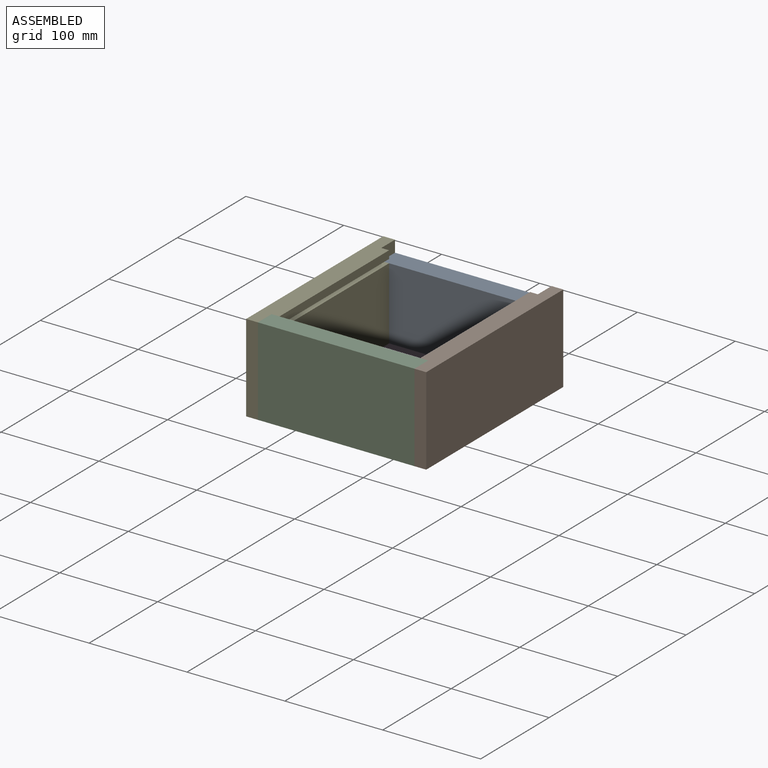
[diagram: assembled view]
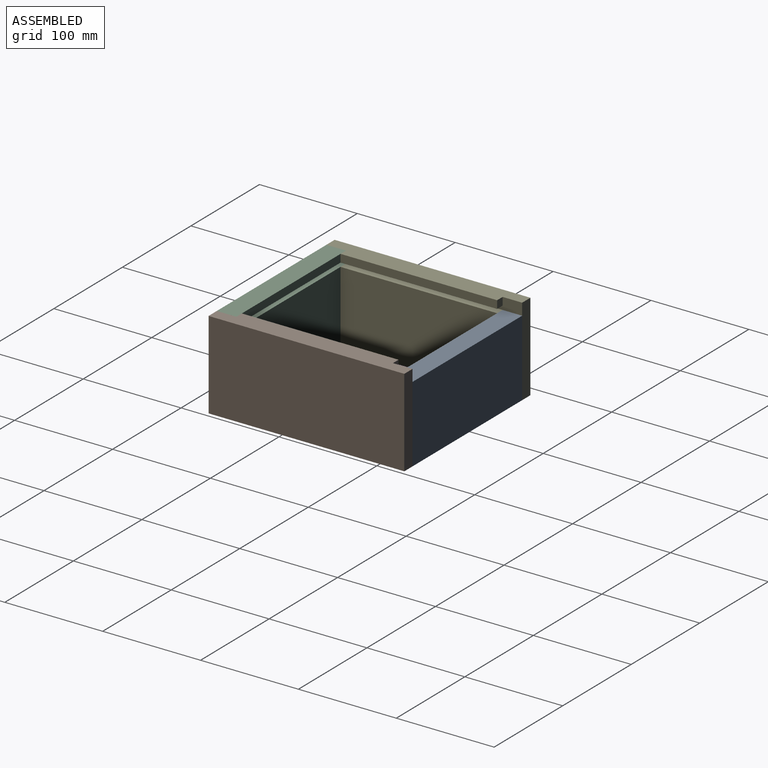
[diagram: assembled view, second angle]
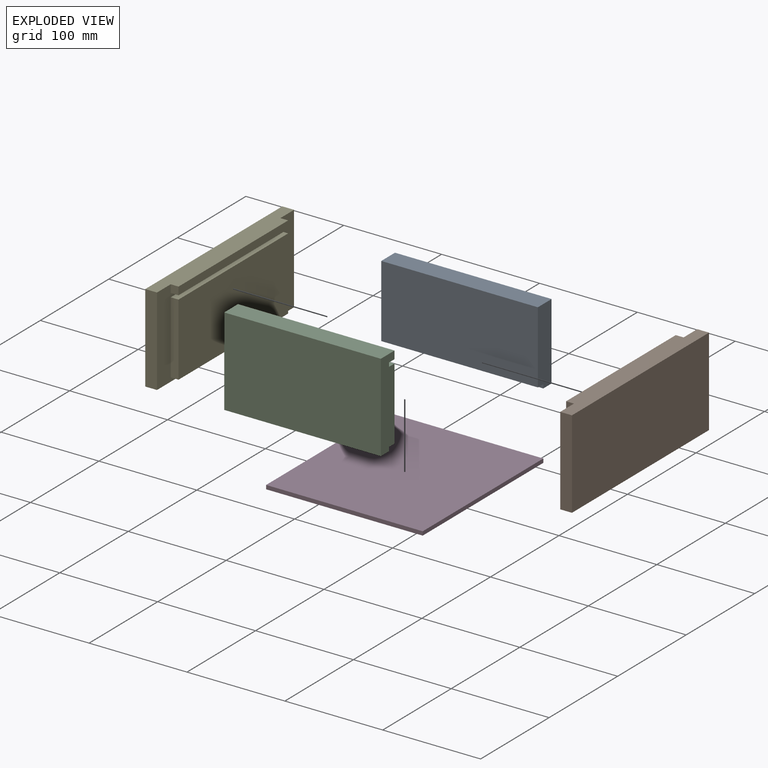
[diagram: exploded view]
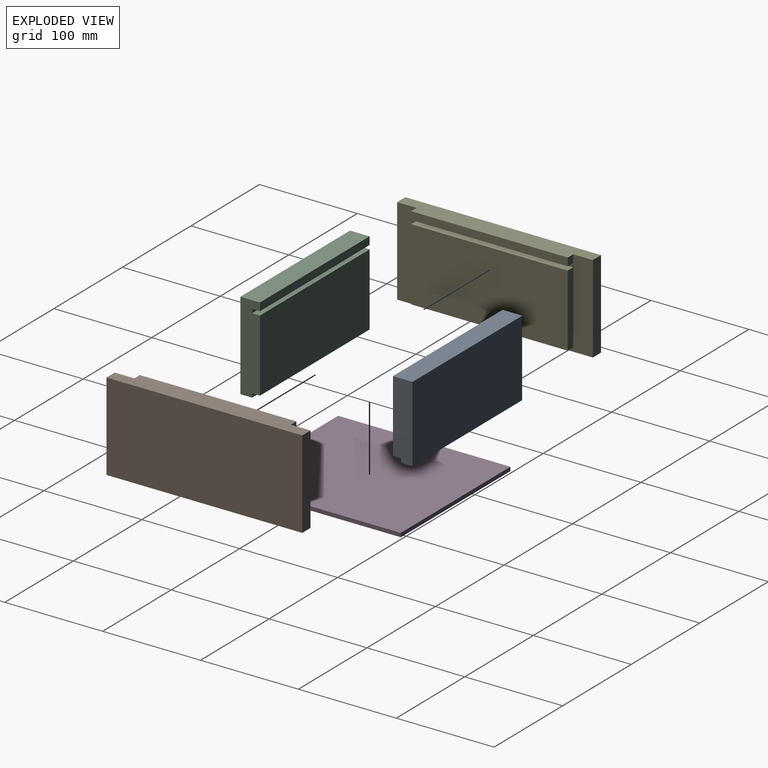
[diagram: exploded view, second angle]
ASSEMBLY  parts=5 mates=4
PART A: 8 faces, bbox 160x20x78 mm
  f0: plane 160x4mm, normal (0,-1,0), area 640mm2, adj f1,f3,f4,f7
  f1: plane 78x20mm, normal (1,0,0), area 1528mm2, adj f0,f2,f4,f5,f6,f7
  f2: plane 160x78mm, normal (0,1,0), area 12480mm2, adj f1,f3,f4,f5
  f3: plane 78x20mm, normal (-1,0,0), area 1528mm2, adj f0,f2,f4,f5,f6,f7
  f4: plane 160x12mm, normal (0,0,-1), area 1920mm2, adj f0,f1,f2,f3
  f5: plane 160x20mm, normal (0,0,1), area 3200mm2, adj f1,f2,f3,f6
  f6: plane 160x74mm, normal (0,-1,0), area 11840mm2, adj f1,f3,f5,f7
  f7: plane 160x8mm, normal (0,0,-1), area 1280mm2, adj f0,f1,f3,f6
PART B: 15 faces, bbox 200x20x90 mm
  f0: plane 90x12mm, normal (-1,0,0), area 1080mm2, adj f1,f3,f4,f5
  f1: plane 200x12mm, normal (0,0,-1), area 2400mm2, adj f0,f2,f4,f5
  f2: plane 90x12mm, normal (1,0,0), area 1080mm2, adj f1,f3,f4,f5
  f3: plane 200x20mm, normal (0,0,1), area 3680mm2, adj f0,f2,f4,f5,f6,f8,f9
  f4: plane 200x90mm, normal (0,-1,0), area 4880mm2, adj f0,f1,f2,f3,f6,f7,f8,f11
  f5: plane 200x90mm, normal (0,1,0), area 18000mm2, adj f0,f1,f2,f3
  f6: plane 8x8mm, normal (1,0,0), area 64mm2, adj f3,f4,f7,f9
  f7: plane 160x8mm, normal (0,0,-1), area 1280mm2, adj f4,f6,f8,f9
  f8: plane 8x8mm, normal (-1,0,0), area 64mm2, adj f3,f4,f7,f9
  f9: plane 160x8mm, normal (0,-1,0), area 1280mm2, adj f3,f6,f7,f8
  f10: plane 160x74mm, normal (0,-1,0), area 11840mm2, adj f11,f12,f13,f14
  f11: plane 74x8mm, normal (1,0,0), area 592mm2, adj f4,f10,f12,f14
  f12: plane 160x8mm, normal (0,0,1), area 1280mm2, adj f4,f10,f11,f13
  f13: plane 74x8mm, normal (-1,0,0), area 592mm2, adj f4,f10,f12,f14
  f14: plane 160x8mm, normal (0,0,-1), area 1280mm2, adj f4,f10,f11,f13
PART C: 12 faces, bbox 160x20x90 mm
  f0: plane 160x4mm, normal (0,-1,0), area 640mm2, adj f2,f4,f7,f9
  f1: plane 160x4mm, normal (0,-1,0), area 640mm2, adj f2,f4,f5,f10
  f2: plane 90x20mm, normal (1,0,0), area 1736mm2, adj f0,f1,f3,f5,f6,f7,f8,f9
  f3: plane 160x20mm, normal (0,0,1), area 3200mm2, adj f2,f4,f6,f8
  f4: plane 90x20mm, normal (-1,0,0), area 1736mm2, adj f0,f1,f3,f5,f6,f7,f8,f9
  f5: plane 160x12mm, normal (0,0,-1), area 1920mm2, adj f1,f2,f4,f6
  f6: plane 160x90mm, normal (0,1,0), area 14400mm2, adj f2,f3,f4,f5
  f7: plane 160x8mm, normal (0,0,-1), area 1280mm2, adj f0,f2,f4,f8
  f8: plane 160x8mm, normal (0,-1,0), area 1280mm2, adj f2,f3,f4,f7
  f9: plane 160x8mm, normal (0,0,1), area 1280mm2, adj f0,f2,f4,f11
  f10: plane 160x8mm, normal (0,0,-1), area 1280mm2, adj f1,f2,f4,f11
  f11: plane 160x74mm, normal (0,-1,0), area 11840mm2, adj f2,f4,f9,f10
PART D: 6 faces, bbox 176x160x4 mm
  f0: plane 176x4mm, normal (0,-1,0), area 704mm2, adj f1,f3,f4,f5
  f1: plane 160x4mm, normal (1,0,0), area 640mm2, adj f0,f2,f4,f5
  f2: plane 176x4mm, normal (0,1,0), area 704mm2, adj f1,f3,f4,f5
  f3: plane 160x4mm, normal (-1,0,0), area 640mm2, adj f0,f2,f4,f5
  f4: plane 176x160mm, normal (0,0,1), area 28160mm2, adj f0,f1,f2,f3
  f5: plane 176x160mm, normal (0,0,-1), area 28160mm2, adj f0,f1,f2,f3
PART E: same geometry as B
PLACE A t=(-68.04,4.94,-5.18)mm
PLACE B rot(axis=(0,0,-1),90deg) t=(23.96,-85.06,-38.18)mm
PLACE C rot(axis=(0,0,1),180deg) t=(-68.04,-185.06,-38.18)mm
PLACE D rot(axis=(0,0,1),90deg) t=(-68.04,-85.06,-83.18)mm
PLACE E rot(axis=(0,0,1),90deg) t=(-160.04,-85.06,-38.18)mm
MATE fastened D.f4 <-> C.f10  axis (0,0,1) through (11.96,-173.06,-79.18)mm
MATE fastened C.f4 <-> B.f4  axis (1,0,0) through (11.96,-185.06,-83.18)mm
MATE fastened B.f4 <-> A.f1  axis (-1,0,0) through (11.96,14.94,-83.18)mm
MATE fastened E.f4 <-> C.f2  axis (1,0,0) through (-148.04,-185.06,-83.18)mm
